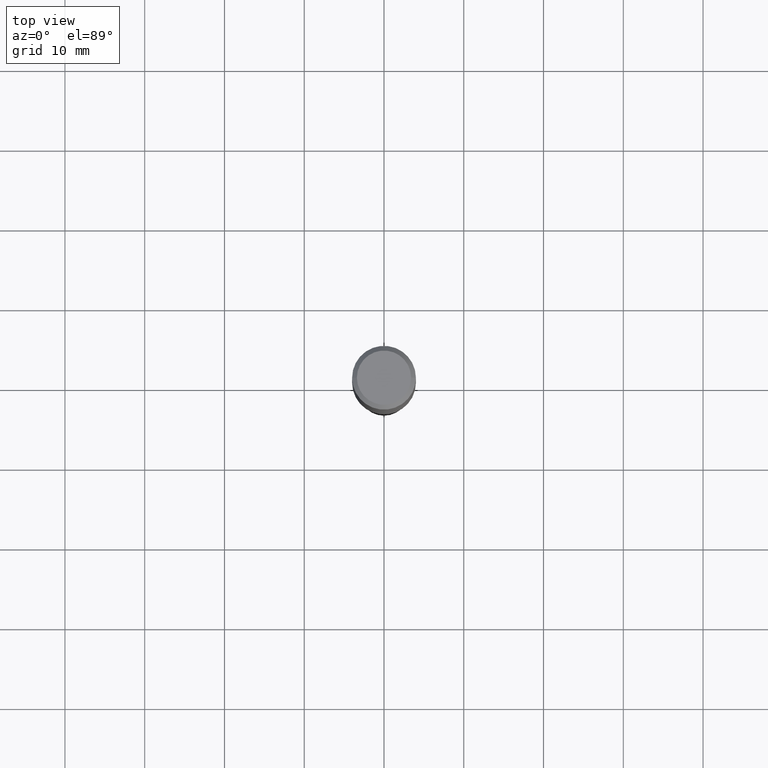
[diagram: clean part render]
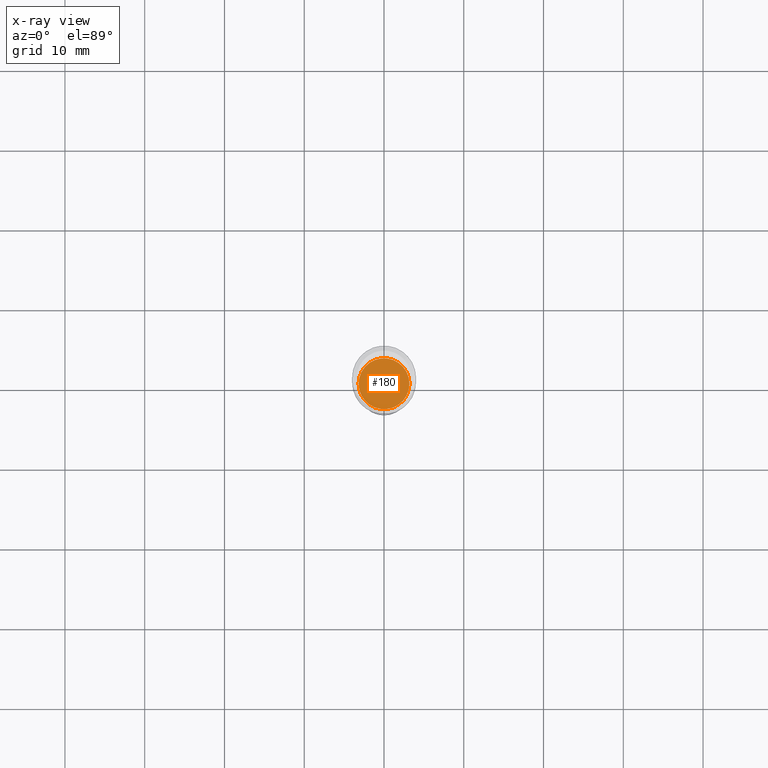
[diagram: x-ray — body ghosted, one internal face saturated and labeled with its STEP entity id]
A machine part, top view, then the same camera in x-ray: the body is ghosted and one INTERNAL B-rep face — a face not visible from any outside direction — is saturated and labeled: STEP entity #180.
In plain terms, the highlighted planar face has unit normal (-0, 0, 1).
Its self-contained STEP definition (entity closure, byte-faithful):
#20 = CARTESIAN_POINT ( 'NONE',  ( 4.274924020092237183E-29, -6.103458528431703746E-15, -1.748100000000000209 ) ) ;
#76 = CARTESIAN_POINT ( 'NONE',  ( -0.1255000000000000004, -5.209078167878667203E-15, -1.748100000000000209 ) ) ;
#80 = AXIS2_PLACEMENT_3D ( 'NONE', #20, #166, #334 ) ;
#82 = ORIENTED_EDGE ( 'NONE', *, *, #291, .F. ) ;
#84 = AXIS2_PLACEMENT_3D ( 'NONE', #328, #279, #204 ) ;
#133 = VERTEX_POINT ( 'NONE', #364 ) ;
#144 = ORIENTED_EDGE ( 'NONE', *, *, #356, .F. ) ;
#166 = DIRECTION ( 'NONE',  ( -2.445468806185136597E-29, 3.491481338843145583E-15, 1.000000000000000000 ) ) ;
#170 = PLANE ( 'NONE',  #84 ) ;
#180 = ADVANCED_FACE ( 'NONE', ( #482 ), #170, .F. ) ;
#181 = DIRECTION ( 'NONE',  ( 1.000000000000000000, -6.982962677686267499E-15, 0.000000000000000000 ) ) ;
#204 = DIRECTION ( 'NONE',  ( 1.000000000000000000, -6.982962677686265922E-15, 4.876176775795935793E-29 ) ) ;
#218 = CARTESIAN_POINT ( 'NONE',  ( 4.274924020092237183E-29, -6.103458528431703746E-15, -1.748100000000000209 ) ) ;
#278 = VERTEX_POINT ( 'NONE', #76 ) ;
#279 = DIRECTION ( 'NONE',  ( -2.438088387897960049E-29, 3.491481338843145188E-15, 1.000000000000000000 ) ) ;
#291 = EDGE_CURVE ( 'NONE', #133, #278, #307, .T. ) ;
#307 = CIRCLE ( 'NONE', #455, 0.1255000000000000004 ) ;
#314 = EDGE_LOOP ( 'NONE', ( #82, #144 ) ) ;
#328 = CARTESIAN_POINT ( 'NONE',  ( 4.274924020092237183E-29, -6.103458528431703746E-15, -1.748100000000000209 ) ) ;
#329 = CIRCLE ( 'NONE', #80, 0.1255000000000000004 ) ;
#334 = DIRECTION ( 'NONE',  ( 1.000000000000000000, -6.982962677686267499E-15, 0.000000000000000000 ) ) ;
#356 = EDGE_CURVE ( 'NONE', #278, #133, #329, .T. ) ;
#364 = CARTESIAN_POINT ( 'NONE',  ( 0.1255000000000000004, -6.979820344481330092E-15, -1.748100000000000209 ) ) ;
#421 = DIRECTION ( 'NONE',  ( -2.445468806185136597E-29, 3.491481338843145583E-15, 1.000000000000000000 ) ) ;
#455 = AXIS2_PLACEMENT_3D ( 'NONE', #218, #421, #181 ) ;
#482 = FACE_OUTER_BOUND ( 'NONE', #314, .T. ) ;